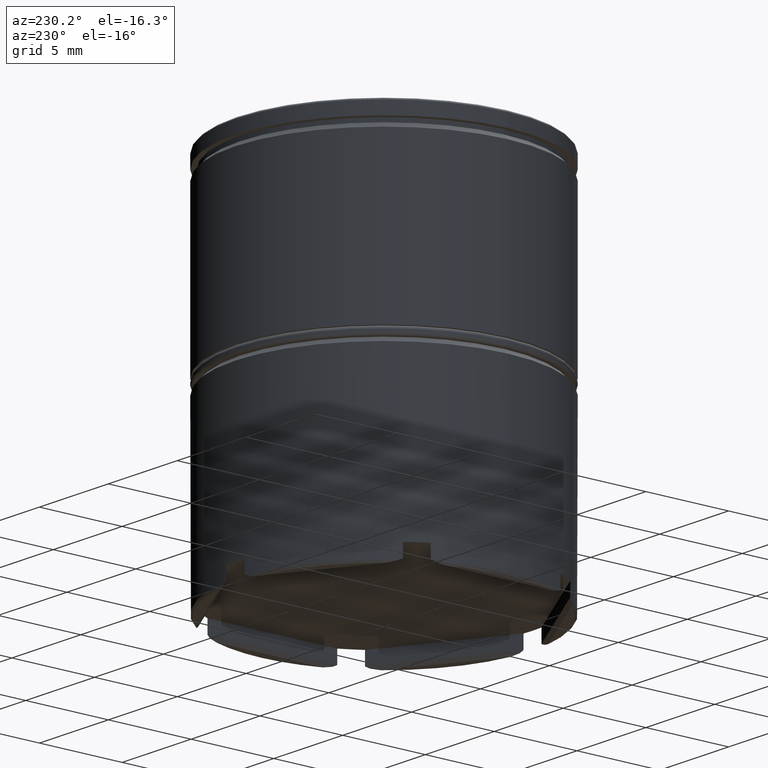
[diagram: clean part render]
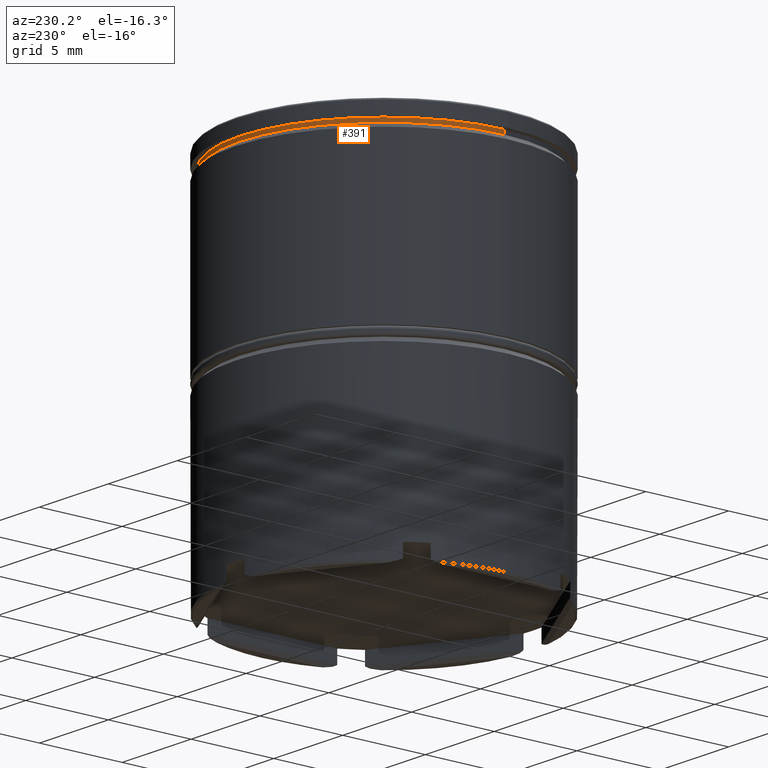
[diagram: same view with one face highlighted and labeled with its STEP entity id]
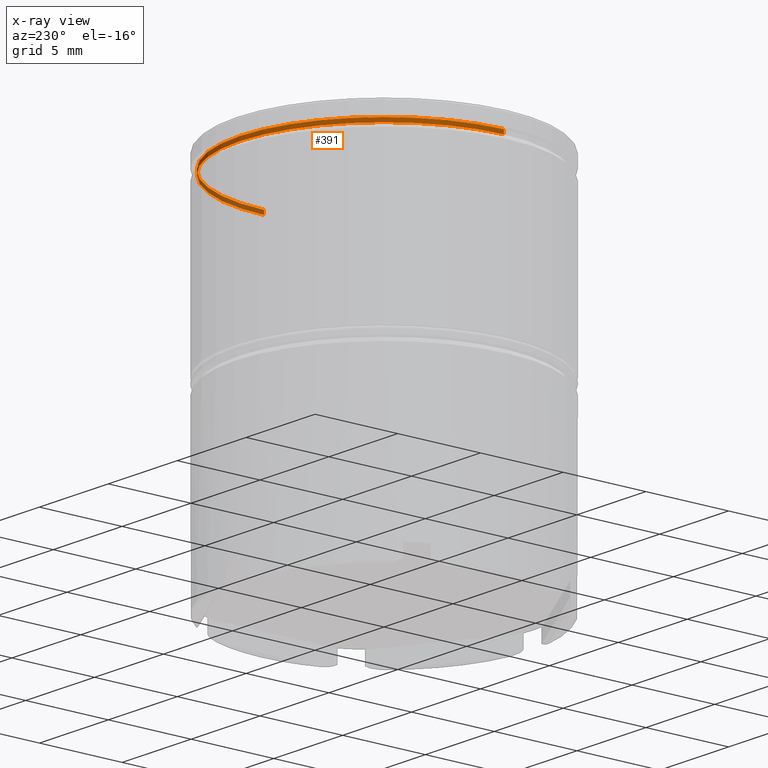
[diagram: x-ray of the same camera — body ghosted, the highlighted face saturated]
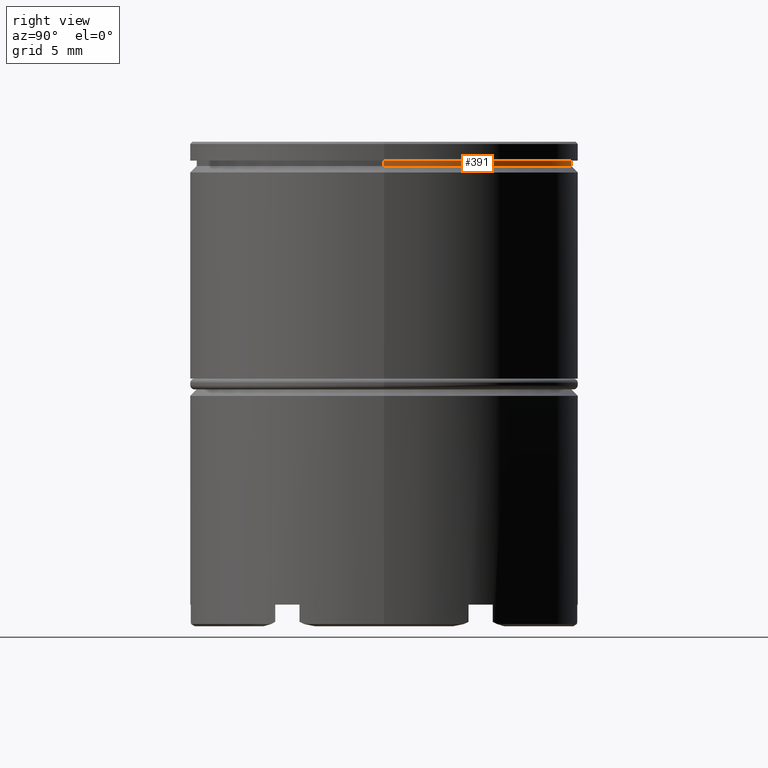
[diagram: same view with one face highlighted and labeled with its STEP entity id]
A machine part, auxiliary view. The second image highlights one B-rep face of the part: STEP entity #391.
The next image is the same camera in x-ray: the body ghosted, the highlighted face saturated — about 17% of this face is hidden behind the body in this view.
A second angle (right view) of the same face is appended — the face is thin or edge-on in the first view.
In plain terms, the highlighted cylindrical surface (partial cylindrical patch) has radius 8.7 mm, axis along (-0, -0, 1).
Its self-contained STEP definition (entity closure, byte-faithful):
#51 = CIRCLE ( 'NONE', #617, 8.699999999999999289 ) ;
#75 = EDGE_CURVE ( 'NONE', #942, #564, #666, .T. ) ;
#391 = ADVANCED_FACE ( 'NONE', ( #781 ), #1002, .T. ) ;
#411 = DIRECTION ( 'NONE',  ( -0.000000000000000000, -0.000000000000000000, 1.000000000000000000 ) ) ;
#460 = CARTESIAN_POINT ( 'NONE',  ( 0.000000000000000000, 0.000000000000000000, -0.8749999999999998890 ) ) ;
#464 = CIRCLE ( 'NONE', #744, 8.699999999999999289 ) ;
#492 = DIRECTION ( 'NONE',  ( 1.000000000000000000, 0.000000000000000000, 0.000000000000000000 ) ) ;
#564 = VERTEX_POINT ( 'NONE', #1197 ) ;
#584 = CARTESIAN_POINT ( 'NONE',  ( 0.000000000000000000, 0.000000000000000000, -1.125000000000000222 ) ) ;
#608 = CARTESIAN_POINT ( 'NONE',  ( 8.699999999999999289, 0.000000000000000000, -0.8749999999999998890 ) ) ;
#617 = AXIS2_PLACEMENT_3D ( 'NONE', #584, #706, #492 ) ;
#630 = EDGE_CURVE ( 'NONE', #980, #942, #51, .T. ) ;
#649 = LINE ( 'NONE', #1151, #1457 ) ;
#666 = LINE ( 'NONE', #1173, #977 ) ;
#679 = CARTESIAN_POINT ( 'NONE',  ( -8.699999999999999289, 1.065442715258197248E-15, -1.125000000000000222 ) ) ;
#694 = DIRECTION ( 'NONE',  ( 1.000000000000000000, 0.000000000000000000, 0.000000000000000000 ) ) ;
#706 = DIRECTION ( 'NONE',  ( -0.000000000000000000, -0.000000000000000000, 1.000000000000000000 ) ) ;
#744 = AXIS2_PLACEMENT_3D ( 'NONE', #460, #957, #694 ) ;
#781 = FACE_OUTER_BOUND ( 'NONE', #1238, .T. ) ;
#885 = CARTESIAN_POINT ( 'NONE',  ( 0.000000000000000000, 0.000000000000000000, 0.000000000000000000 ) ) ;
#898 = DIRECTION ( 'NONE',  ( -0.000000000000000000, -0.000000000000000000, 1.000000000000000000 ) ) ;
#942 = VERTEX_POINT ( 'NONE', #679 ) ;
#957 = DIRECTION ( 'NONE',  ( -0.000000000000000000, -0.000000000000000000, 1.000000000000000000 ) ) ;
#977 = VECTOR ( 'NONE', #411, 1000.000000000000000 ) ;
#980 = VERTEX_POINT ( 'NONE', #1049 ) ;
#1002 = CYLINDRICAL_SURFACE ( 'NONE', #1167, 8.699999999999999289 ) ;
#1041 = EDGE_CURVE ( 'NONE', #1370, #564, #464, .T. ) ;
#1049 = CARTESIAN_POINT ( 'NONE',  ( 8.699999999999999289, 0.000000000000000000, -1.125000000000000222 ) ) ;
#1125 = ORIENTED_EDGE ( 'NONE', *, *, #1041, .F. ) ;
#1138 = EDGE_CURVE ( 'NONE', #980, #1370, #649, .T. ) ;
#1151 = CARTESIAN_POINT ( 'NONE',  ( 8.699999999999999289, 0.000000000000000000, 0.000000000000000000 ) ) ;
#1167 = AXIS2_PLACEMENT_3D ( 'NONE', #885, #1408, #1280 ) ;
#1173 = CARTESIAN_POINT ( 'NONE',  ( -8.699999999999999289, 1.065442715258197248E-15, 0.000000000000000000 ) ) ;
#1197 = CARTESIAN_POINT ( 'NONE',  ( -8.699999999999999289, 1.065442715258197248E-15, -0.8749999999999998890 ) ) ;
#1238 = EDGE_LOOP ( 'NONE', ( #1606, #1570, #1125, #1441 ) ) ;
#1280 = DIRECTION ( 'NONE',  ( 1.000000000000000000, 0.000000000000000000, 0.000000000000000000 ) ) ;
#1370 = VERTEX_POINT ( 'NONE', #608 ) ;
#1408 = DIRECTION ( 'NONE',  ( -0.000000000000000000, -0.000000000000000000, 1.000000000000000000 ) ) ;
#1441 = ORIENTED_EDGE ( 'NONE', *, *, #1138, .F. ) ;
#1457 = VECTOR ( 'NONE', #898, 1000.000000000000000 ) ;
#1570 = ORIENTED_EDGE ( 'NONE', *, *, #75, .T. ) ;
#1606 = ORIENTED_EDGE ( 'NONE', *, *, #630, .T. ) ;